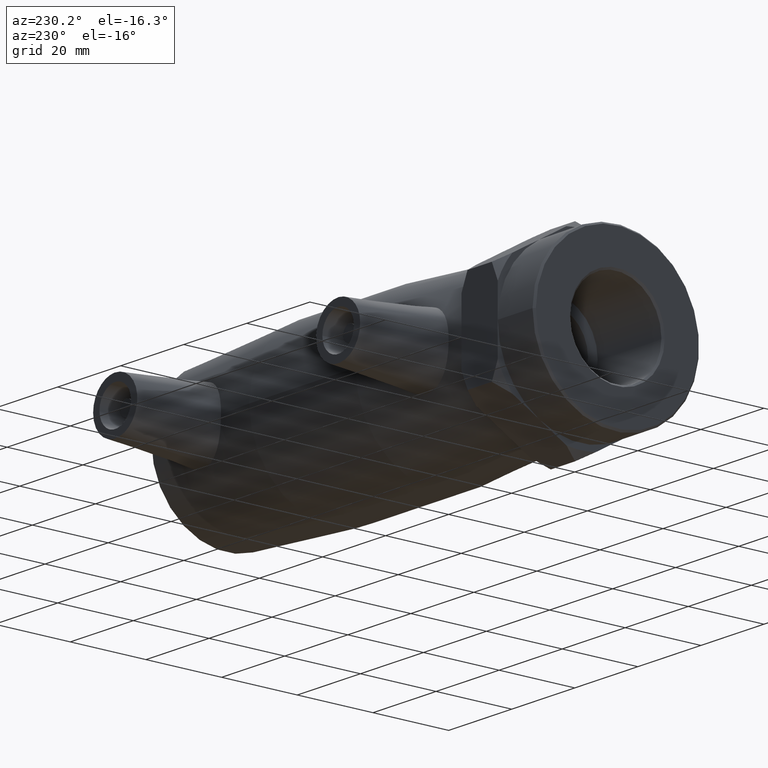
[diagram: clean part render]
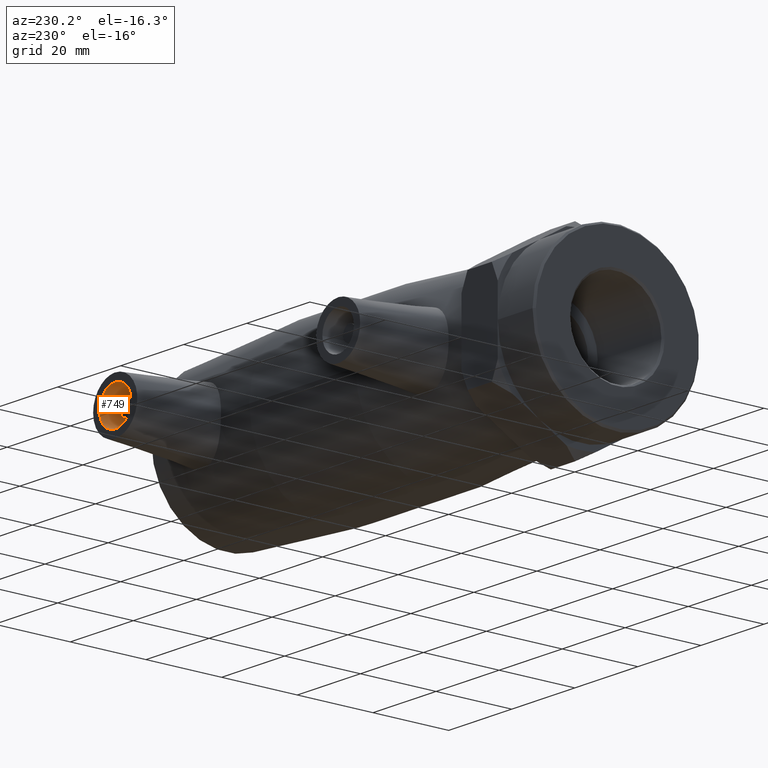
[diagram: same view with one face highlighted and labeled with its STEP entity id]
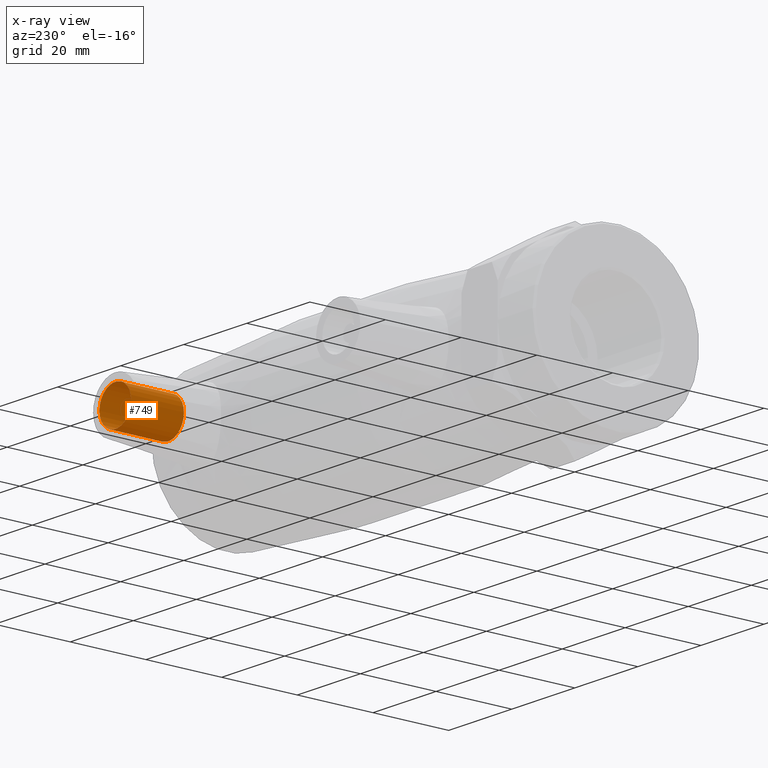
[diagram: x-ray of the same camera — body ghosted, the highlighted face saturated]
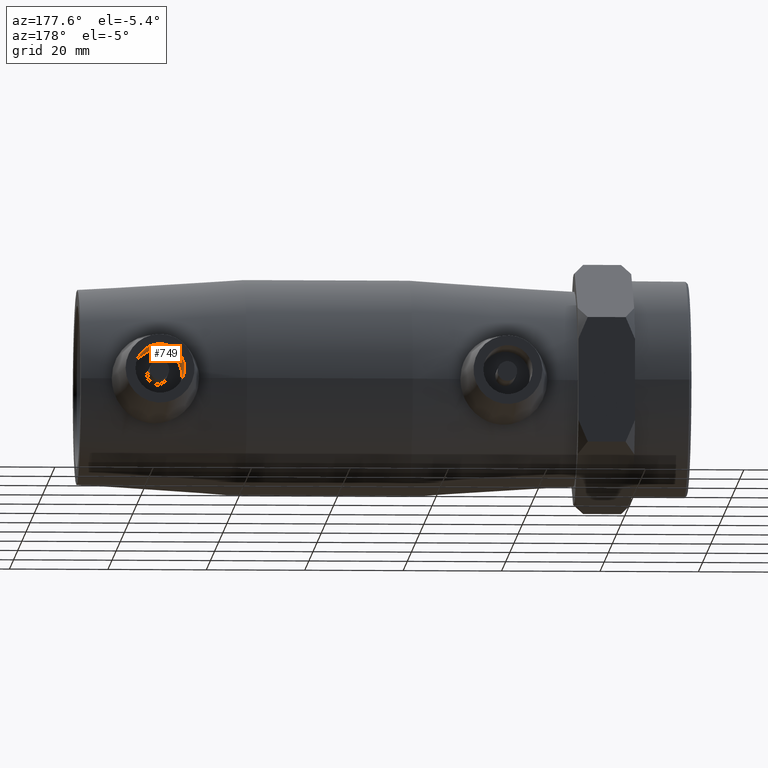
[diagram: same view with one face highlighted and labeled with its STEP entity id]
A machine part, auxiliary view. The second image highlights one B-rep face of the part: STEP entity #749.
The next image is the same camera in x-ray: the body ghosted, the highlighted face saturated — about 0% of this face is hidden behind the body in this view.
A second angle (auxiliary view) of the same face is appended — the face is thin or edge-on in the first view.
In plain terms, the highlighted cylindrical surface (bore or boss wall) has radius 5 mm, axis along (0, 1, 0).
Its self-contained STEP definition (entity closure, byte-faithful):
#94=CYLINDRICAL_SURFACE('',#837,5.);
#135=FACE_BOUND('',#257,.T.);
#190=FACE_OUTER_BOUND('',#256,.T.);
#256=EDGE_LOOP('',(#657));
#257=EDGE_LOOP('',(#658));
#323=CIRCLE('',#838,5.);
#324=CIRCLE('',#839,5.);
#392=VERTEX_POINT('',#1314);
#393=VERTEX_POINT('',#1316);
#487=EDGE_CURVE('',#392,#392,#323,.T.);
#488=EDGE_CURVE('',#393,#393,#324,.T.);
#657=ORIENTED_EDGE('',*,*,#487,.F.);
#658=ORIENTED_EDGE('',*,*,#488,.F.);
#749=ADVANCED_FACE('',(#190,#135),#94,.F.);
#837=AXIS2_PLACEMENT_3D('',#1313,#1031,#1032);
#838=AXIS2_PLACEMENT_3D('',#1315,#1033,#1034);
#839=AXIS2_PLACEMENT_3D('',#1317,#1035,#1036);
#1031=DIRECTION('center_axis',(0.,1.,0.));
#1032=DIRECTION('ref_axis',(1.,0.,0.));
#1033=DIRECTION('center_axis',(0.,1.,0.));
#1034=DIRECTION('ref_axis',(1.,0.,0.));
#1035=DIRECTION('center_axis',(0.,-1.,0.));
#1036=DIRECTION('ref_axis',(1.,0.,0.));
#1313=CARTESIAN_POINT('Origin',(35.35,42.,0.));
#1314=CARTESIAN_POINT('',(30.35,28.,-6.12323399573677E-16));
#1315=CARTESIAN_POINT('Origin',(35.35,28.,0.));
#1316=CARTESIAN_POINT('',(30.35,42.,-6.12323399573677E-16));
#1317=CARTESIAN_POINT('Origin',(35.35,42.,0.));